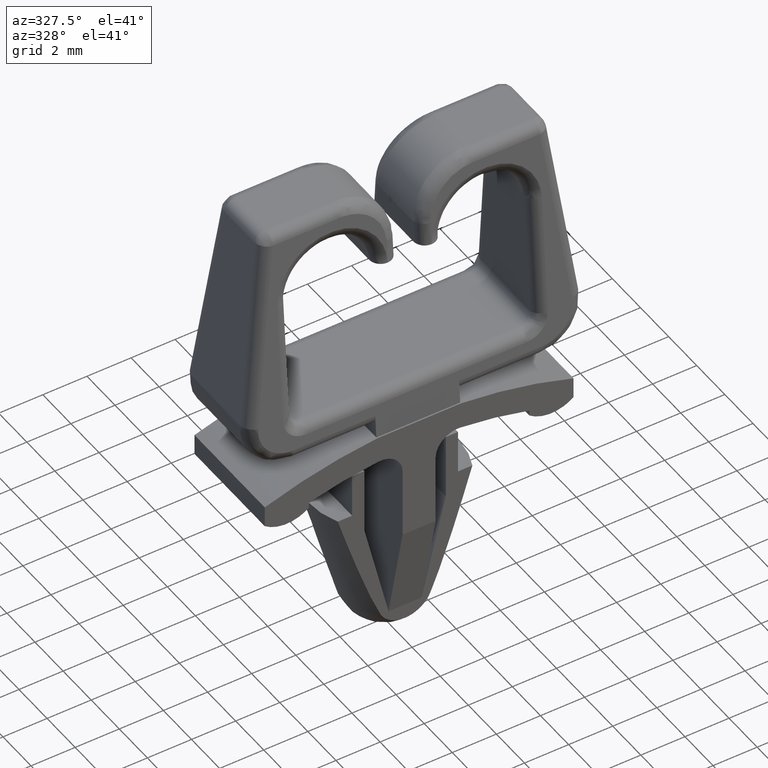
[diagram: clean part render]
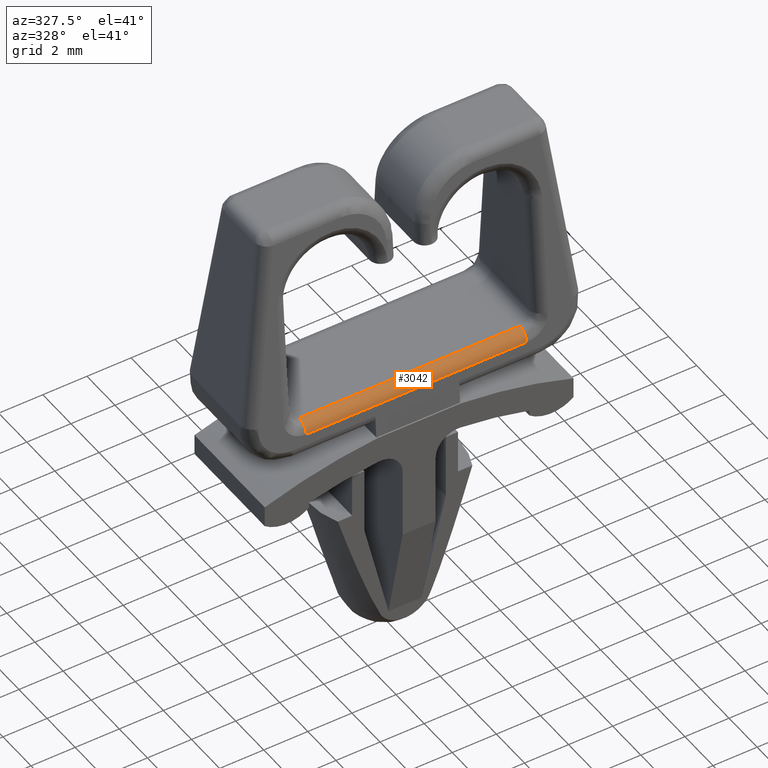
[diagram: same view with one face highlighted and labeled with its STEP entity id]
A machine part, auxiliary view. The second image highlights one B-rep face of the part: STEP entity #3042.
In plain terms, the highlighted face is a freeform B-spline surface patch.
Its self-contained STEP definition (entity closure, byte-faithful):
#2951=CARTESIAN_POINT('',(-5.0,-2.319750500890685,-0.461478495939573));
#2952=VERTEX_POINT('',#2951);
#2953=CARTESIAN_POINT('',(-5.0,-1.821236615702995,0.0));
#2954=VERTEX_POINT('',#2953);
#2955=CARTESIAN_POINT('',(-5.0,-2.319750500890682,-0.461478495939573));
#2956=CARTESIAN_POINT('',(-4.999999999999999,-2.284090820622313,0.0));
#2957=CARTESIAN_POINT('',(-5.0,-1.821236615702995,0.0));
#2965=(BOUNDED_CURVE()B_SPLINE_CURVE(2,(#2955,#2956,#2957),.UNSPECIFIED.,.F.,.U.)CURVE()GEOMETRIC_REPRESENTATION_ITEM()QUASI_UNIFORM_CURVE()RATIONAL_B_SPLINE_CURVE((1.0,0.733840244236051,1.0))REPRESENTATION_ITEM(''));
#2966=EDGE_CURVE('',#2952,#2954,#2965,.T.);
#2998=CARTESIAN_POINT('',(-5.250000000000000,-2.320760726493924,-0.478190306317332));
#2999=CARTESIAN_POINT('',(5.256250000000000,-2.320760726493924,-0.478190306317332));
#3000=CARTESIAN_POINT('',(-5.250000000000002,-2.298422772839891,0.033432947006352));
#3001=CARTESIAN_POINT('',(5.256250000000001,-2.298422772839891,0.033432947006352));
#3002=CARTESIAN_POINT('',(-5.249999999999999,-1.787480510746594,-0.001140775991691));
#3003=CARTESIAN_POINT('',(5.256250000000000,-1.787480510746594,-0.001140775991691));
#3011=(BOUNDED_SURFACE()B_SPLINE_SURFACE(1,2,((#2998,#3000,#3002),(#2999,#3001,#3003)),.UNSPECIFIED.,.F.,.F.,.U.)B_SPLINE_SURFACE_WITH_KNOTS((2,2),(3,3),(0.0,10.506250000000000),(0.0,0.992388288095128),.UNSPECIFIED.)GEOMETRIC_REPRESENTATION_ITEM()RATIONAL_B_SPLINE_SURFACE(((1.0,0.696982542975628,0.995387036829967),(1.0,0.696982542975628,0.995387036829967)))REPRESENTATION_ITEM('')SURFACE());
#3012=CARTESIAN_POINT('',(5.0,-2.319750500890685,-0.461478495939573));
#3013=VERTEX_POINT('',#3012);
#3014=CARTESIAN_POINT('',(5.0,-1.821236615702995,0.0));
#3015=VERTEX_POINT('',#3014);
#3016=CARTESIAN_POINT('',(5.0,-2.319750500890682,-0.461478495939573));
#3017=CARTESIAN_POINT('',(4.999999999999999,-2.284090820622313,0.0));
#3018=CARTESIAN_POINT('',(5.0,-1.821236615702995,0.0));
#3026=(BOUNDED_CURVE()B_SPLINE_CURVE(2,(#3016,#3017,#3018),.UNSPECIFIED.,.F.,.U.)CURVE()GEOMETRIC_REPRESENTATION_ITEM()QUASI_UNIFORM_CURVE()RATIONAL_B_SPLINE_CURVE((1.0,0.733840244236051,1.0))REPRESENTATION_ITEM(''));
#3027=EDGE_CURVE('',#3013,#3015,#3026,.T.);
#3028=ORIENTED_EDGE('',*,*,#3027,.T.);
#3029=CARTESIAN_POINT('',(-5.0,-1.821236615702995,0.0));
#3030=CARTESIAN_POINT('',(5.0,-1.821236615702995,0.0));
#3031=QUASI_UNIFORM_CURVE('',1,(#3029,#3030),.UNSPECIFIED.,.F.,.U.);
#3032=EDGE_CURVE('',#2954,#3015,#3031,.T.);
#3033=ORIENTED_EDGE('',*,*,#3032,.F.);
#3034=ORIENTED_EDGE('',*,*,#2966,.F.);
#3035=CARTESIAN_POINT('',(5.0,-2.319750500890685,-0.461478495939573));
#3036=CARTESIAN_POINT('',(-5.0,-2.319750500890685,-0.461478495939573));
#3037=QUASI_UNIFORM_CURVE('',1,(#3035,#3036),.UNSPECIFIED.,.F.,.U.);
#3038=EDGE_CURVE('',#3013,#2952,#3037,.T.);
#3039=ORIENTED_EDGE('',*,*,#3038,.F.);
#3040=EDGE_LOOP('',(#3028,#3033,#3034,#3039));
#3041=FACE_OUTER_BOUND('',#3040,.T.);
#3042=ADVANCED_FACE('',(#3041),#3011,.T.);